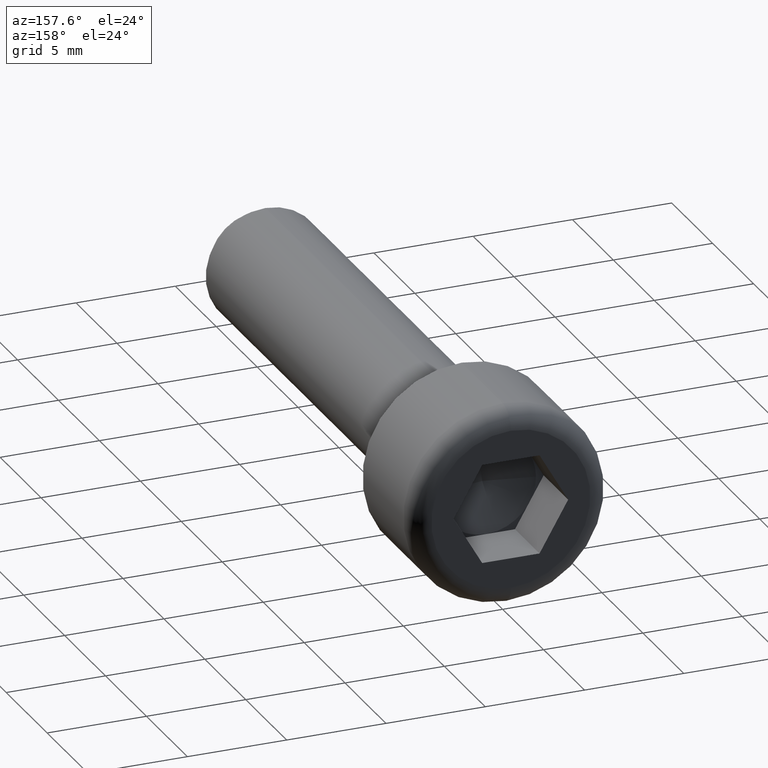
[diagram: clean part render]
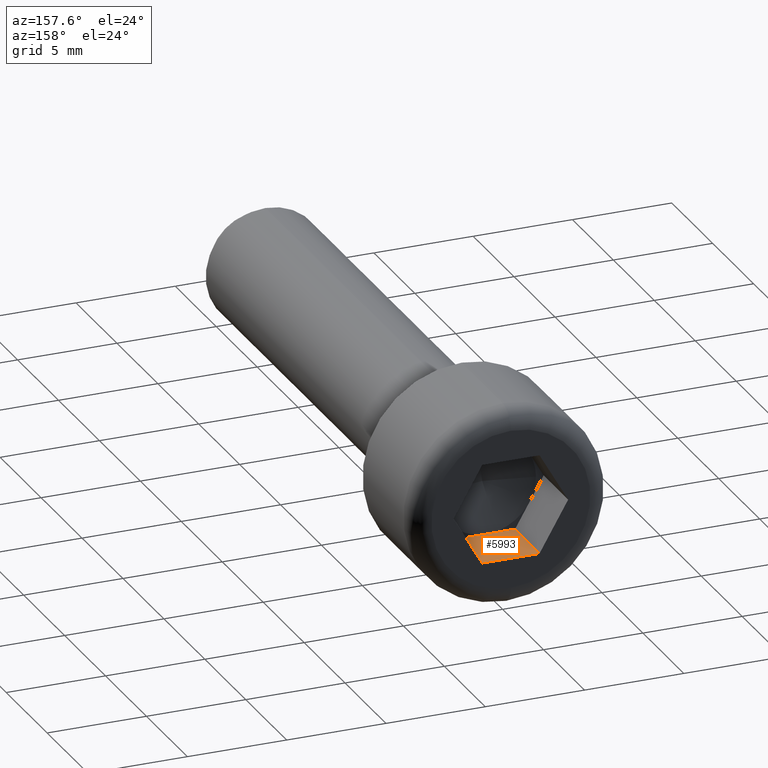
[diagram: same view with one face highlighted and labeled with its STEP entity id]
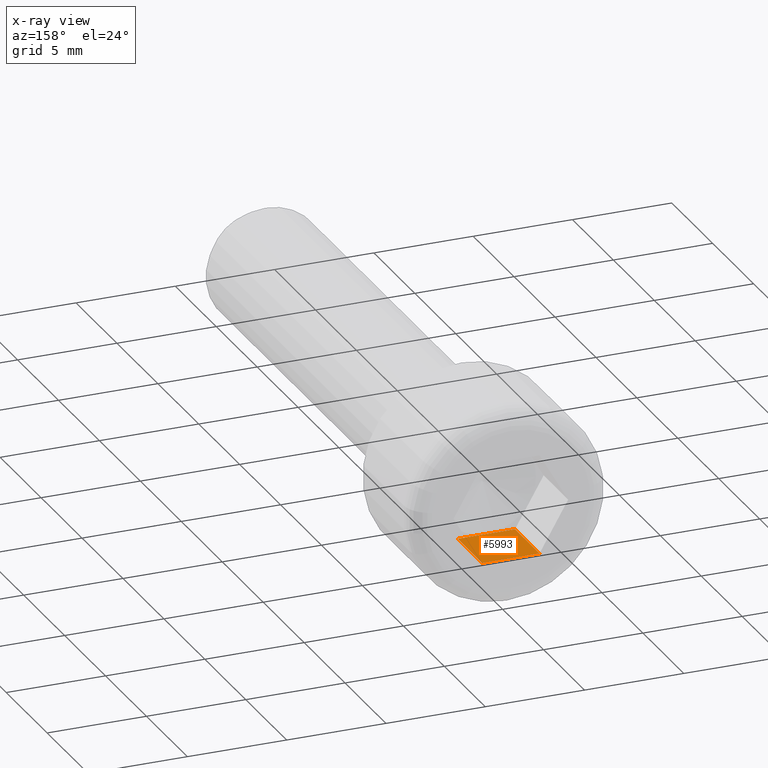
[diagram: x-ray of the same camera — body ghosted, the highlighted face saturated]
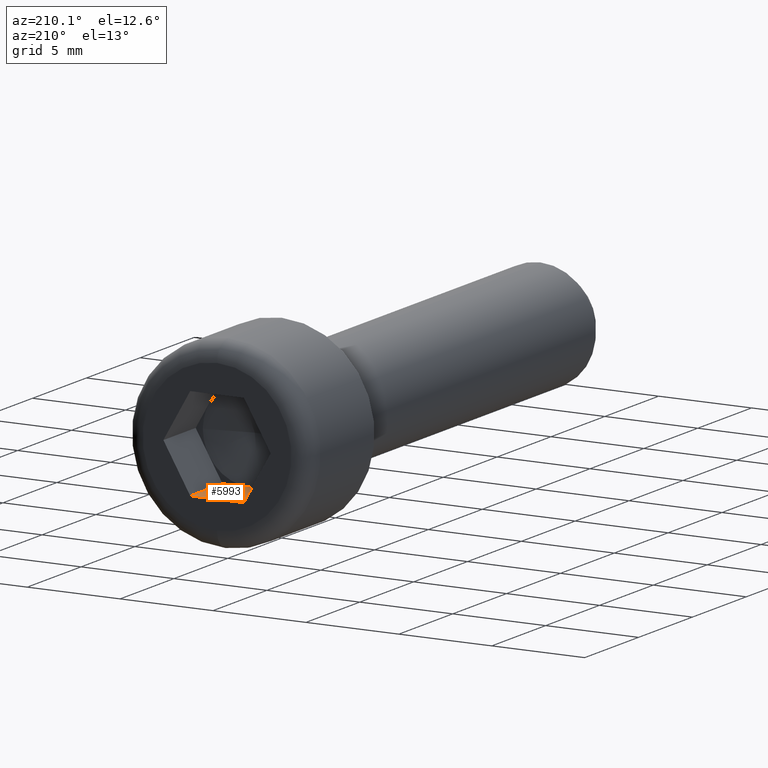
[diagram: same view with one face highlighted and labeled with its STEP entity id]
A machine part, auxiliary view. The second image highlights one B-rep face of the part: STEP entity #5993.
The next image is the same camera in x-ray: the body ghosted, the highlighted face saturated — about 0% of this face is hidden behind the body in this view.
A second angle (auxiliary view) of the same face is appended — the face is thin or edge-on in the first view.
In plain terms, the highlighted planar face has unit normal (-0, 0, -1).
Its self-contained STEP definition (entity closure, byte-faithful):
#313 = CARTESIAN_POINT ( 'NONE',  ( 1.443375672974064328, 3.000000000000000000, -2.500000000000000444 ) ) ;
#624 = CARTESIAN_POINT ( 'NONE',  ( 1.443375672974064328, 3.000000000000000000, -2.500000000000000444 ) ) ;
#1408 = CARTESIAN_POINT ( 'NONE',  ( 1.443375672974064328, 3.000000000000000000, -2.500000000000000444 ) ) ;
#1596 = ORIENTED_EDGE ( 'NONE', *, *, #3489, .F. ) ;
#2463 = VECTOR ( 'NONE', #5066, 1000.000000000000000 ) ;
#2614 = CARTESIAN_POINT ( 'NONE',  ( -1.443375672974064772, 3.000000000000000000, -2.500000000000000000 ) ) ;
#2818 = CARTESIAN_POINT ( 'NONE',  ( -4.368109896416574305E-16, 2.999999999999999556, -2.500000000000000000 ) ) ;
#2933 = CARTESIAN_POINT ( 'NONE',  ( 1.443375672974064328, 6.000000000000000000, -2.500000000000000444 ) ) ;
#3489 = EDGE_CURVE ( 'NONE', #6595, #15814, #15070, .T. ) ;
#3662 = VERTEX_POINT ( 'NONE', #13712 ) ;
#3747 = PLANE ( 'NONE',  #8508 ) ;
#3881 = CARTESIAN_POINT ( 'NONE',  ( 1.443375672974064328, 3.000000000000000000, -2.500000000000000444 ) ) ;
#4089 = ORIENTED_EDGE ( 'NONE', *, *, #10669, .T. ) ;
#4807 = ORIENTED_EDGE ( 'NONE', *, *, #14735, .T. ) ;
#4996 = EDGE_CURVE ( 'NONE', #3662, #7576, #10812, .T. ) ;
#5066 = DIRECTION ( 'NONE',  ( -1.000000000000000000, 0.000000000000000000, 1.502314598737159278E-16 ) ) ;
#5776 = CARTESIAN_POINT ( 'NONE',  ( -1.443375672974064772, 3.000000000000000000, -2.500000000000000000 ) ) ;
#5993 = ADVANCED_FACE ( 'NONE', ( #10814 ), #3747, .F. ) ;
#6466 = EDGE_LOOP ( 'NONE', ( #4089, #1596, #12660, #11015, #4807 ) ) ;
#6595 = VERTEX_POINT ( 'NONE', #5776 ) ;
#6662 = VERTEX_POINT ( 'NONE', #2933 ) ;
#7576 = VERTEX_POINT ( 'NONE', #2818 ) ;
#7725 = EDGE_CURVE ( 'NONE', #7576, #6595, #14379, .T. ) ;
#8504 = DIRECTION ( 'NONE',  ( -0.000000000000000000, 1.000000000000000000, -0.000000000000000000 ) ) ;
#8508 = AXIS2_PLACEMENT_3D ( 'NONE', #3881, #16719, #9462 ) ;
#9462 = DIRECTION ( 'NONE',  ( -1.000000000000000000, 0.000000000000000000, 1.502314598737159031E-16 ) ) ;
#10300 = VECTOR ( 'NONE', #14612, 1000.000000000000000 ) ;
#10462 = DIRECTION ( 'NONE',  ( -1.000000000000000000, 0.000000000000000000, 1.502314598737159278E-16 ) ) ;
#10669 = EDGE_CURVE ( 'NONE', #6662, #15814, #11196, .T. ) ;
#10812 = LINE ( 'NONE', #624, #2463 ) ;
#10814 = FACE_OUTER_BOUND ( 'NONE', #6466, .T. ) ;
#11015 = ORIENTED_EDGE ( 'NONE', *, *, #4996, .F. ) ;
#11196 = LINE ( 'NONE', #17334, #12558 ) ;
#11518 = VECTOR ( 'NONE', #8504, 1000.000000000000000 ) ;
#11717 = DIRECTION ( 'NONE',  ( -1.000000000000000000, 0.000000000000000000, 1.502314598737159278E-16 ) ) ;
#12558 = VECTOR ( 'NONE', #11717, 1000.000000000000000 ) ;
#12660 = ORIENTED_EDGE ( 'NONE', *, *, #7725, .F. ) ;
#13712 = CARTESIAN_POINT ( 'NONE',  ( 1.443375672974064328, 3.000000000000000000, -2.500000000000000444 ) ) ;
#14379 = LINE ( 'NONE', #313, #17069 ) ;
#14612 = DIRECTION ( 'NONE',  ( -0.000000000000000000, 1.000000000000000000, -0.000000000000000000 ) ) ;
#14735 = EDGE_CURVE ( 'NONE', #3662, #6662, #14993, .T. ) ;
#14993 = LINE ( 'NONE', #1408, #10300 ) ;
#15070 = LINE ( 'NONE', #2614, #11518 ) ;
#15814 = VERTEX_POINT ( 'NONE', #18376 ) ;
#16719 = DIRECTION ( 'NONE',  ( -1.502314598737159031E-16, 0.000000000000000000, -1.000000000000000000 ) ) ;
#17069 = VECTOR ( 'NONE', #10462, 1000.000000000000000 ) ;
#17334 = CARTESIAN_POINT ( 'NONE',  ( 1.443375672974064328, 6.000000000000000000, -2.500000000000000444 ) ) ;
#18376 = CARTESIAN_POINT ( 'NONE',  ( -1.443375672974064772, 6.000000000000000000, -2.500000000000000000 ) ) ;